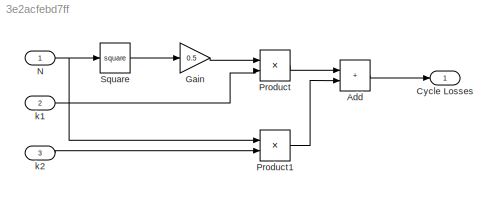
MODEL slx_3e2acfebd7ff
KIND model
CONFIG AbsTol = auto
CONFIG EnableMultiTasking = off
CONFIG FixedStep = auto
CONFIG MaxStep = auto
CONFIG MinStep = auto
CONFIG RelTol = 1e-3
CONFIG SampleTimeConstraint = Unconstrained
CONFIG SolverName = VariableStepAuto
CONFIG StartTime = 0.0
CONFIG StopTime = 10.0
BLOCK [Sum] Add
  IconShape = rectangular
BLOCK [Outport] Cycle Losses
BLOCK [Gain] Gain
  Gain = 0.5
BLOCK [Inport] N
BLOCK [Product] Product
BLOCK [Product] Product1
BLOCK [Math] Square
  Operator = square
BLOCK [Inport] k1
  Port = 2
BLOCK [Inport] k2
  Port = 3
LINE Add:1 -> Cycle Losses:1
LINE Gain:1 -> Product:1
NET N:1 -> Product1:1, Square:1
LINE Product1:1 -> Add:2
LINE Product:1 -> Add:1
LINE Square:1 -> Gain:1
LINE k1:1 -> Product:2
LINE k2:1 -> Product1:2
note: NET lines group one-source signal fan-out (src -> all destinations, sorted); 1:1 wires keep LINE
